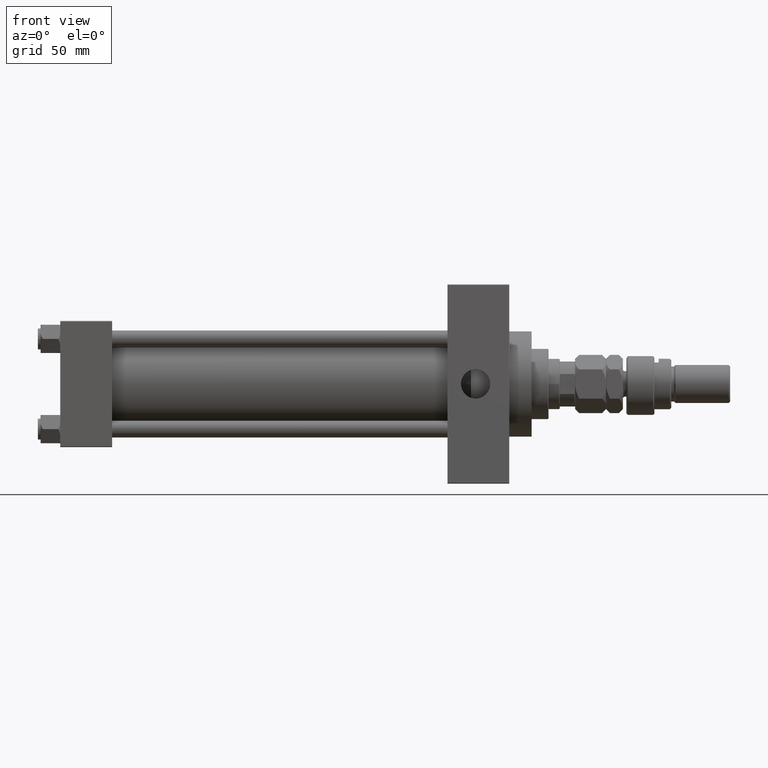
[diagram: clean part render]
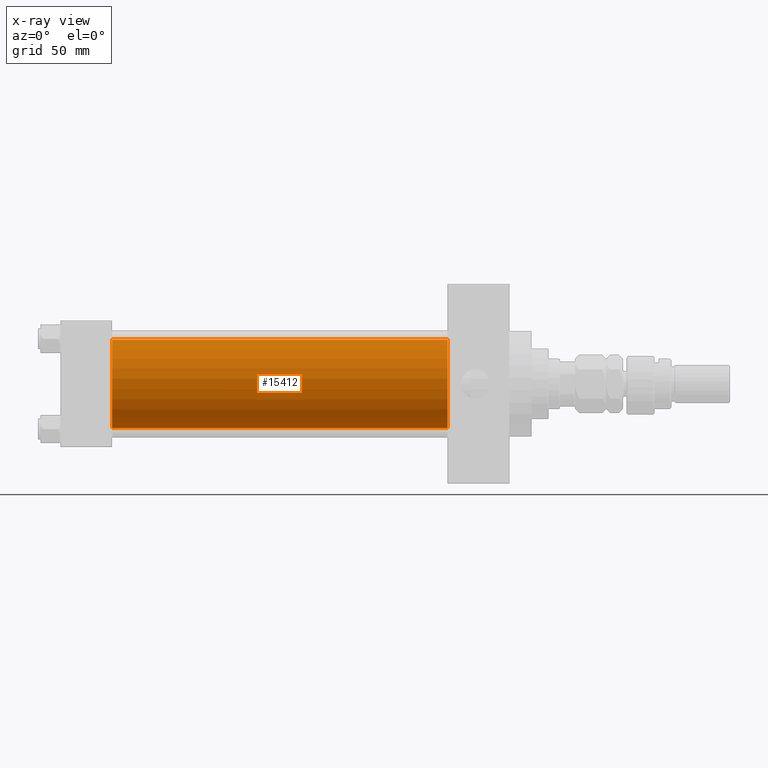
[diagram: x-ray — body ghosted, one internal face saturated and labeled with its STEP entity id]
A machine part, front view, then the same camera in x-ray: the body is ghosted and one INTERNAL B-rep face — a face not visible from any outside direction — is saturated and labeled: STEP entity #15412.
In plain terms, the highlighted cylindrical surface (partial cylindrical patch) has radius 31.5 mm, axis along (-1, -0, -0).
Its self-contained STEP definition (entity closure, byte-faithful):
#1025 = CARTESIAN_POINT ( 'NONE',  ( 275.9999999999999432, 1.255552203348951061E-15, -31.50000000000000000 ) ) ;
#1560 = ORIENTED_EDGE ( 'NONE', *, *, #43942, .T. ) ;
#2109 = DIRECTION ( 'NONE',  ( -1.000000000000000000, -0.000000000000000000, -0.000000000000000000 ) ) ;
#2132 = DIRECTION ( 'NONE',  ( 0.000000000000000000, 0.000000000000000000, -1.000000000000000000 ) ) ;
#3137 = DIRECTION ( 'NONE',  ( -1.000000000000000000, -0.000000000000000000, -0.000000000000000000 ) ) ;
#5228 = AXIS2_PLACEMENT_3D ( 'NONE', #18012, #49057, #17506 ) ;
#5933 = CARTESIAN_POINT ( 'NONE',  ( 37.00000000000000000, -2.602085213965210642E-15, 0.000000000000000000 ) ) ;
#8658 = ORIENTED_EDGE ( 'NONE', *, *, #27961, .F. ) ;
#10107 = CIRCLE ( 'NONE', #5228, 31.50000000000000000 ) ;
#10518 = CYLINDRICAL_SURFACE ( 'NONE', #31289, 31.50000000000000000 ) ;
#10582 = LINE ( 'NONE', #44670, #18191 ) ;
#11058 = CARTESIAN_POINT ( 'NONE',  ( 37.00000000000000000, 1.255552203348951061E-15, -31.50000000000000000 ) ) ;
#15081 = CARTESIAN_POINT ( 'NONE',  ( 275.9999999999999432, -2.602085213965210642E-15, 0.000000000000000000 ) ) ;
#15412 = ADVANCED_FACE ( 'NONE', ( #46128 ), #10518, .F. ) ;
#16170 = CIRCLE ( 'NONE', #18675, 31.50000000000000000 ) ;
#17506 = DIRECTION ( 'NONE',  ( 0.000000000000000000, 0.000000000000000000, -1.000000000000000000 ) ) ;
#18012 = CARTESIAN_POINT ( 'NONE',  ( 275.9999999999999432, -2.602085213965210642E-15, 0.000000000000000000 ) ) ;
#18191 = VECTOR ( 'NONE', #41627, 1000.000000000000000 ) ;
#18675 = AXIS2_PLACEMENT_3D ( 'NONE', #5933, #36972, #2132 ) ;
#20418 = EDGE_CURVE ( 'NONE', #43962, #26312, #21178, .T. ) ;
#21178 = LINE ( 'NONE', #47903, #24861 ) ;
#24260 = VERTEX_POINT ( 'NONE', #1025 ) ;
#24806 = ORIENTED_EDGE ( 'NONE', *, *, #42998, .T. ) ;
#24861 = VECTOR ( 'NONE', #2109, 1000.000000000000000 ) ;
#25413 = CARTESIAN_POINT ( 'NONE',  ( 275.9999999999999432, -2.602085213965210642E-15, 31.50000000000000000 ) ) ;
#26312 = VERTEX_POINT ( 'NONE', #48230 ) ;
#27961 = EDGE_CURVE ( 'NONE', #26312, #39890, #16170, .T. ) ;
#29848 = DIRECTION ( 'NONE',  ( 0.000000000000000000, 0.000000000000000000, 1.000000000000000000 ) ) ;
#31289 = AXIS2_PLACEMENT_3D ( 'NONE', #15081, #3137, #29848 ) ;
#36972 = DIRECTION ( 'NONE',  ( 1.000000000000000000, 0.000000000000000000, 0.000000000000000000 ) ) ;
#37116 = ORIENTED_EDGE ( 'NONE', *, *, #20418, .F. ) ;
#39890 = VERTEX_POINT ( 'NONE', #11058 ) ;
#41627 = DIRECTION ( 'NONE',  ( -1.000000000000000000, -0.000000000000000000, -0.000000000000000000 ) ) ;
#42998 = EDGE_CURVE ( 'NONE', #24260, #39890, #10582, .T. ) ;
#43942 = EDGE_CURVE ( 'NONE', #43962, #24260, #10107, .T. ) ;
#43962 = VERTEX_POINT ( 'NONE', #25413 ) ;
#44670 = CARTESIAN_POINT ( 'NONE',  ( 275.9999999999999432, 1.255552203348951061E-15, -31.50000000000000000 ) ) ;
#45195 = EDGE_LOOP ( 'NONE', ( #1560, #24806, #8658, #37116 ) ) ;
#46128 = FACE_OUTER_BOUND ( 'NONE', #45195, .T. ) ;
#47903 = CARTESIAN_POINT ( 'NONE',  ( 275.9999999999999432, -2.602085213965210642E-15, 31.50000000000000000 ) ) ;
#48230 = CARTESIAN_POINT ( 'NONE',  ( 37.00000000000000000, -2.602085213965210642E-15, 31.50000000000000000 ) ) ;
#49057 = DIRECTION ( 'NONE',  ( 1.000000000000000000, 0.000000000000000000, 0.000000000000000000 ) ) ;